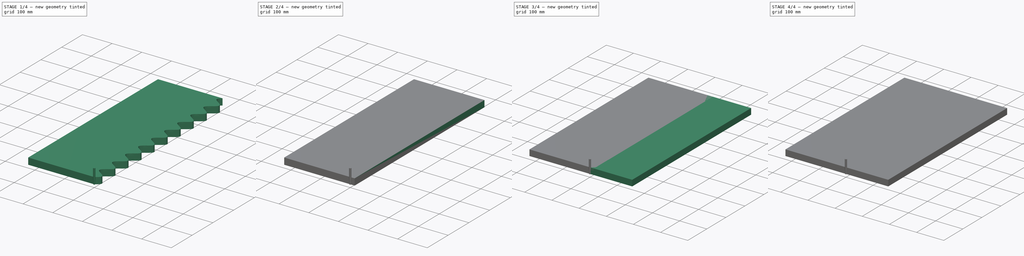
[diagram: build sequence overview — one tinted view per stage of 4, left to right]
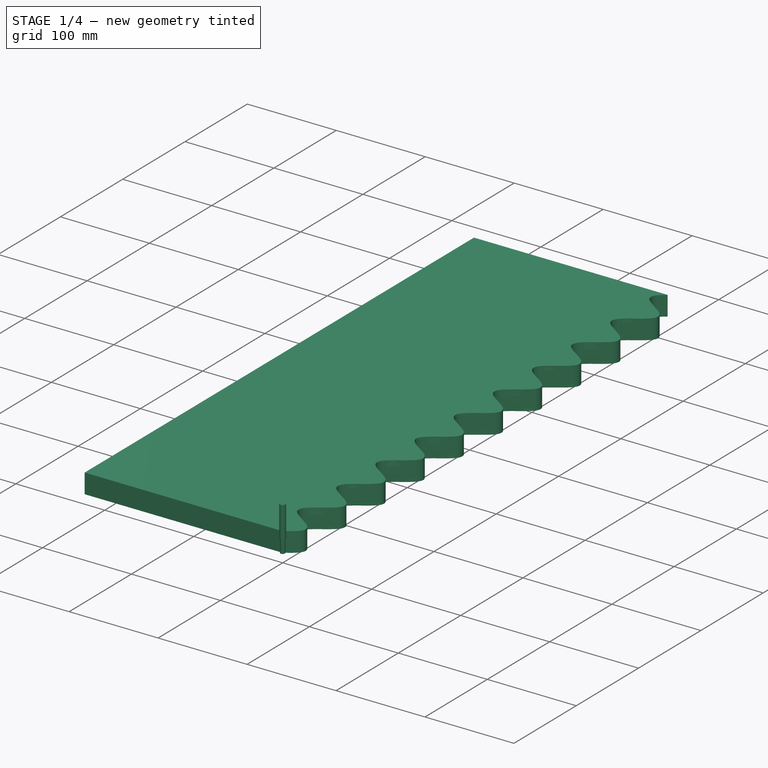
[diagram: stage 1 of 4 — iso view after this stage's code; geometry added in this stage tinted green]
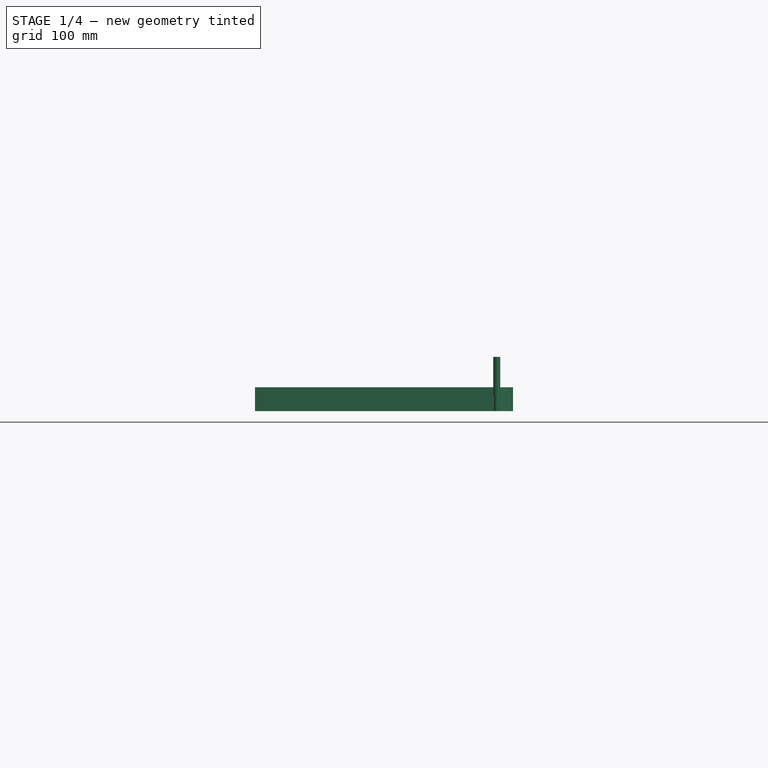
[diagram: stage 1 of 4 — front view after this stage's code; geometry added in this stage tinted green]
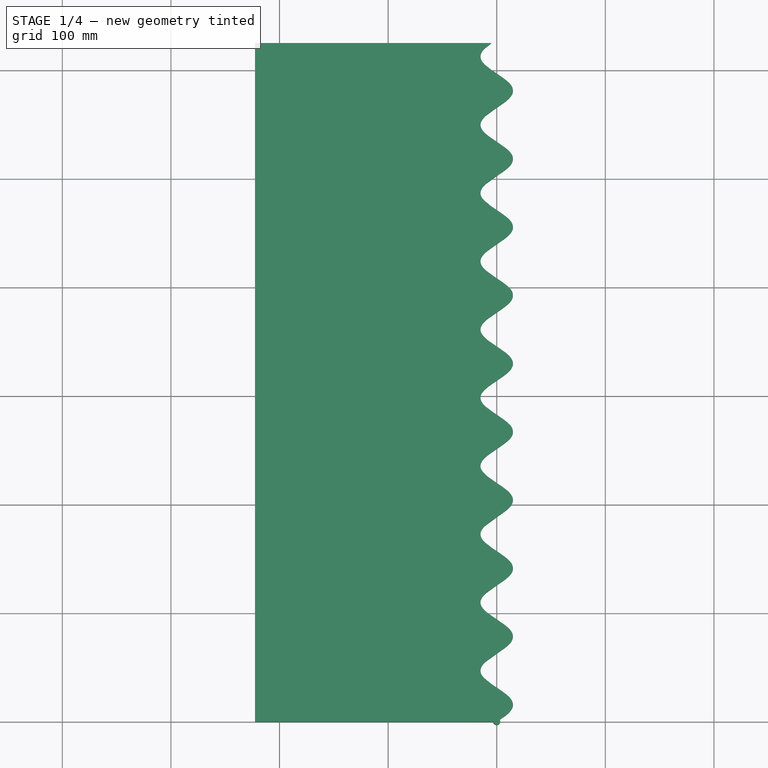
[diagram: stage 1 of 4 — top view after this stage's code; geometry added in this stage tinted green]
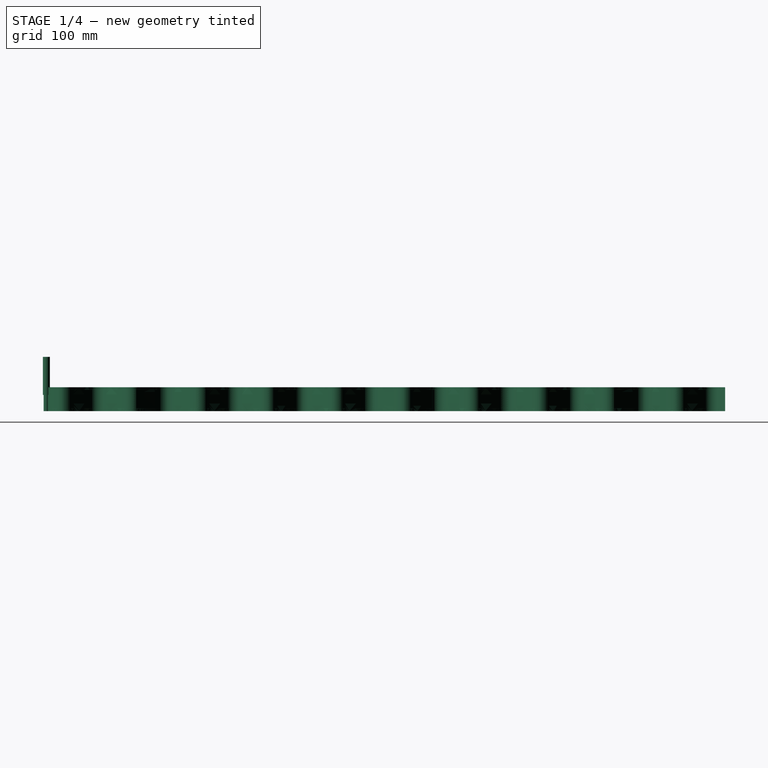
[diagram: stage 1 of 4 — right view after this stage's code; geometry added in this stage tinted green]
FCSTD DOCUMENT  (FreeCAD 0.20RUnknown)
Label: Spline
License: All rights reserved
LicenseURL: http://en.wikipedia.org/wiki/All_rights_reserved
objects: Part::FeaturePython×7, App::DocumentObjectGroup×6, Path::FeaturePython×6, Sketcher::SketchObject×2, PartDesign::Pad×2, PartDesign::Body×2, App::FeaturePython×2, Part::Part2DObjectPython×1
note: 18 computed .brp shape members not serialized (recipe doc carries the construction recipe); baked Part::Feature solids carry a one-line shape summary decoded from their .brp

FEATURE [Path::FeaturePython] _mm_Endmill  label="5mm Endmill001"  # Path/CAM operation (typed FeaturePython)
  HorizFeed = 15
  HorizRapid = 0
  SpindleDir = 0
  SpindleSpeed = 12000
  Tool = -> ToolBit002
  ToolNumber = 2
  VertFeed = 5
  VertRapid = 0
  expr: HorizRapid = SetupSheet.HorizRapid
  expr: VertRapid = SetupSheet.VertRapid
FEATURE [App::DocumentObjectGroup] Tools
  Group = -> [_mm_Endmill]
FEATURE [Path::FeaturePython] Profile  # Path/CAM operation (typed FeaturePython)
  Active = true
  Base = -> [Clone]
  ClearanceHeight = 27
  CoolantMode = 0
  CycleTime = 00:10:15
  Direction = 0
  FinalDepth = 0
  HandleMultipleFeatures = 0
  JoinType = 0
  MiterLimit = 0.1
  OffsetExtra = 0
  OpFinalDepth = 22
  OpStartDepth = 26
  OpStockZMax = 22
  OpStockZMin = 0
  OpToolDiameter = 5
  PathParams = {'feedrate': 15.0, 'feedrate_v': 5.0, 'verbose': True, 'resume_height': 25.0, 'retraction': 27.0, 'return_end': True, 'preamble': False, 'start': Vector (-1.5178215833962319, 1.9834919609406825, 0.0)}
  SafeHeight = 25
  Side = 0
  SplitArcs = false
  StartDepth = 22
  StartPoint = (0,0,0)
  StepDown = 4
  ToolController = -> _mm_Endmill
  UseComp = true
  UseStartPoint = false
  processCircles = false
  processHoles = false
  processPerimeter = true
  expr: ClearanceHeight = OpStockZMax + SetupSheet.ClearanceHeightOffset
  expr: FinalDepth = 0
  expr: SafeHeight = OpStockZMax + SetupSheet.SafeHeightOffset
  expr: StartDepth = 22
  expr: StepDown = 4
FEATURE [App::DocumentObjectGroup] Operations
  Group = -> [Profile]
FEATURE [Path::FeaturePython] Job  label="RightJob"  # Path/CAM operation (typed FeaturePython)
  CycleTime = 00:10:15
  Fixtures = G54
  GeometryTolerance = 0.01
  JobType = 0
  Model = -> Model
  Operations = -> Operations
  OrderOutputBy = 0
  PostProcessor = 2
  PostProcessorOutputFile = %D/%d-%j.ngc
  SetupSheet = -> SetupSheet
  SplitOutput = false
  Stock = -> Stock001
  Tools = -> Tools
FEATURE [Sketcher::SketchObject] Sketch001
  FullyConstrained = false
  sketch-geometry (258):
    g0: BSplineCurve PolesCount=128 KnotsCount=126 Degree=3 IsPeriodic=0
    g1-g128: Circle x128 (B-spline internal-alignment scaffolding for g0; pole/knot coordinates omitted)
    g129-g254: GeomPoint x126 (B-spline internal-alignment scaffolding for g0; pole/knot coordinates omitted)
    g255: LineSegment StartX=-4.88693 StartY=625 StartZ=0 EndX=-222.593 EndY=625 EndZ=0
    g256: LineSegment StartX=-222.593 StartY=625 StartZ=0 EndX=-222.593 EndY=0 EndZ=0
    g257: LineSegment StartX=-222.593 StartY=0 StartZ=0 EndX=0 EndY=0 EndZ=0
  constraints (9):
    c: InternalAlignment(g1-g254 -> g0) x254
    c: Coincident(g255,g256)
    c: Coincident(g256,g257)
    c: PointOnObject(g257,g-2)
    c: PointOnObject(g257,g-1)
    c: PointOnObject(g256,g-1)
    c: Perpendicular(g-1,g256)
    c: Parallel(g255,g257)
    c: Coincident(g255,g0)
FEATURE [PartDesign::Pad] Pad001
  Direction = (0,0,1)
  Length = 22
  Length2 = 10
  Profile = -> Sketch001
  ReferenceAxis = -> Sketch001 [N_Axis]
  Type = 0
FEATURE [Part::FeaturePython] ToolBit004  label="5mm Endmill002"  # Path/CAM toolbit (typed FeaturePython)
  BitPropertyNames = Chipload | CuttingEdgeHeight | Diameter | Flutes | Length | Material | ShankDiameter | SpindleDirection
  BitShape = <path>
  Chipload = 0
  CuttingEdgeHeight = 15
  Diameter = 5
  File = <userpath>/Documents/Sherline/FreeCAD/Bit/5mm_Endmill.fctb
  Flutes = 0
  Length = 50
  Material = 0
  ShankDiameter = 6.4
  ShapeName = endmill
  SpindleDirection = 0
FEATURE [Path::FeaturePython] _mm_Endmill002  label="5mm Endmill003"  # Path/CAM operation (typed FeaturePython)
  HorizFeed = 15
  HorizRapid = 0
  SpindleDir = 0
  SpindleSpeed = 12000
  Tool = -> ToolBit004
  ToolNumber = 2
  VertFeed = 5
  VertRapid = 0
  expr: HorizRapid = SetupSheet001.HorizRapid
  expr: VertRapid = SetupSheet001.VertRapid
FEATURE [App::DocumentObjectGroup] Tools001
  Group = -> [_mm_Endmill002]
FEATURE [Path::FeaturePython] Profile001  # Path/CAM operation (typed FeaturePython)
  Active = true
  Base = -> [Clone001]
  ClearanceHeight = 27
  CoolantMode = 0
  CycleTime = 00:10:57
  Direction = 0
  FinalDepth = 0
  HandleMultipleFeatures = 0
  JoinType = 0
  MiterLimit = 0.1
  OffsetExtra = 0
  OpFinalDepth = 22
  OpStartDepth = 26
  OpStockZMax = 22
  OpStockZMin = 0
  OpToolDiameter = 5
  PathParams = {'feedrate': 15.0, 'feedrate_v': 5.0, 'verbose': True, 'resume_height': 25.0, 'retraction': 27.0, 'return_end': True, 'preamble': False, 'start': Vector (-3.349763455213378, 623.030587, 0.0)}
  SafeHeight = 25
  Side = 0
  SplitArcs = false
  StartDepth = 22
  StartPoint = (0,0,0)
  StepDown = 4
  ToolController = -> _mm_Endmill002
  UseComp = true
  UseStartPoint = false
  processCircles = false
  processHoles = false
  processPerimeter = true
  expr: ClearanceHeight = 27
  expr: FinalDepth = 0
  expr: SafeHeight = 25
  expr: StartDepth = 22
  expr: StepDown = 4
FEATURE [App::DocumentObjectGroup] Operations001
  Group = -> [Profile001]
FEATURE [Path::FeaturePython] Job001  label="LeftJob"  # Path/CAM operation (typed FeaturePython)
  CycleTime = 00:10:57
  Fixtures = G54
  GeometryTolerance = 0.01
  JobType = 0
  Model = -> Model001
  Operations = -> Operations001
  OrderOutputBy = 0
  PostProcessor = 2
  PostProcessorOutputFile = %D/%d-%j.ngc
  SetupSheet = -> SetupSheet001
  SplitOutput = false
  Stock = -> Stock002
  Tools = -> Tools001
note: 3 file-system paths scrubbed to <path> (originals preserved in the JSON sidecar)
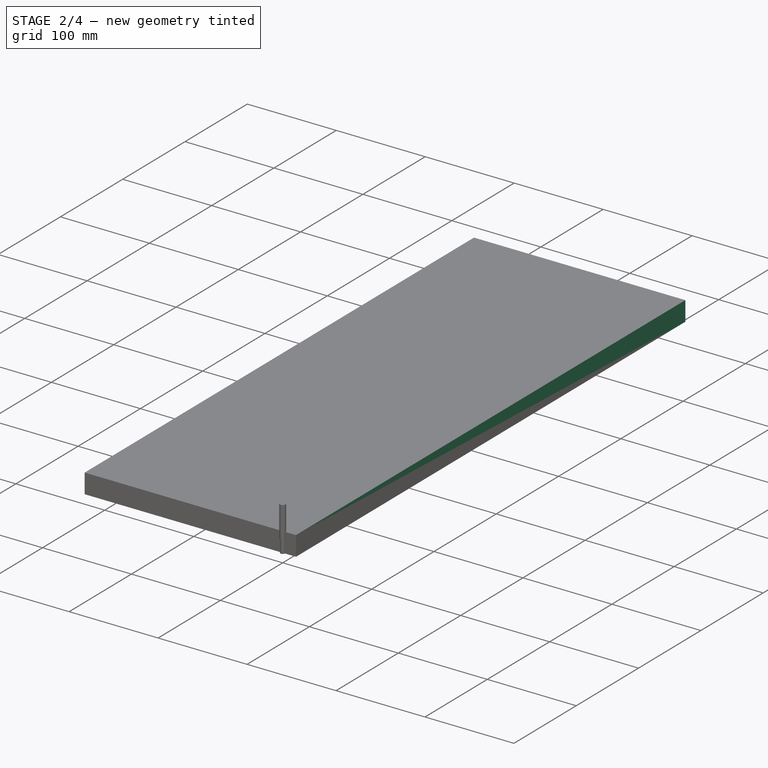
[diagram: stage 2 of 4 — iso view after this stage's code; geometry added in this stage tinted green]
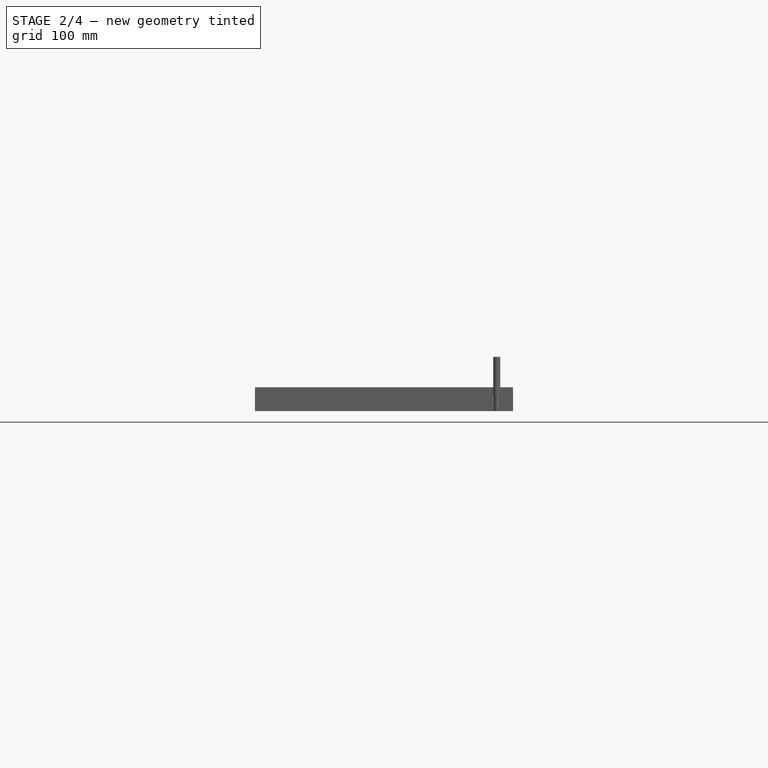
[diagram: stage 2 of 4 — front view after this stage's code; geometry added in this stage tinted green]
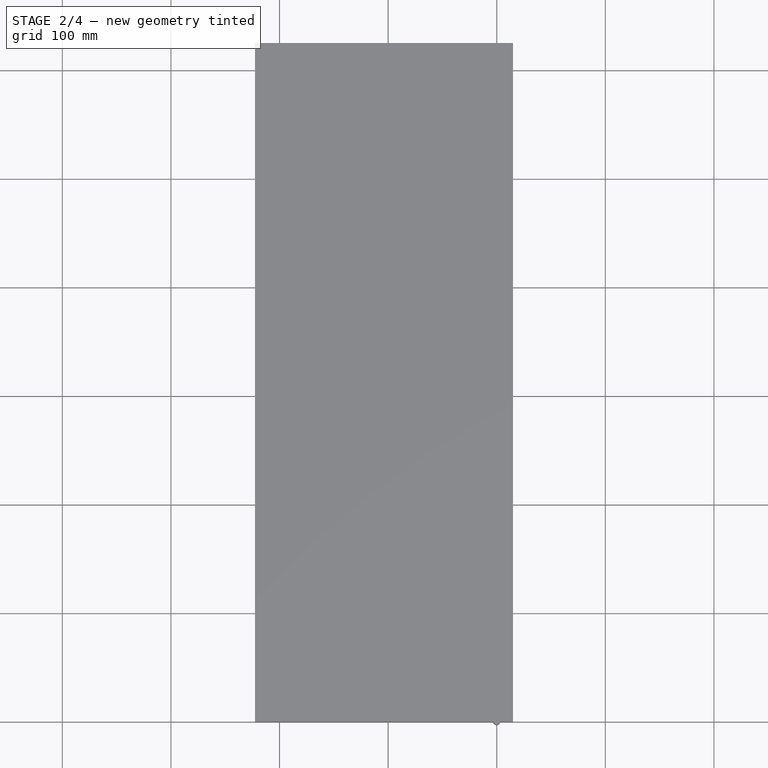
[diagram: stage 2 of 4 — top view after this stage's code; geometry added in this stage tinted green]
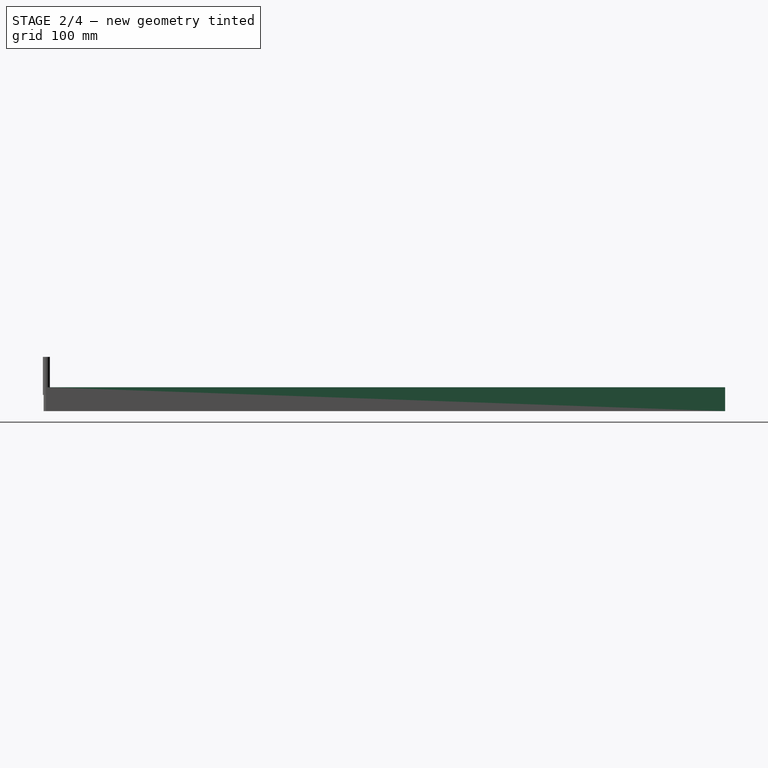
[diagram: stage 2 of 4 — right view after this stage's code; geometry added in this stage tinted green]
FEATURE [PartDesign::Body] Body001  label="LeftBody"
  Group = -> [Sketch001,Pad001]
  Origin = -> Origin001
  Tip = -> Pad001
FEATURE [App::FeaturePython] SetupSheet001  # Path/CAM operation (typed FeaturePython)
  ClearanceHeightExpression = OpStockZMax+SetupSheet001.ClearanceHeightOffset
  ClearanceHeightOffset = 5
  CoolantMode = 0
  CoolantModes = None | Flood | Mist
  FinalDepthExpression = OpFinalDepth
  HorizRapid = 0
  SafeHeightExpression = OpStockZMax+SetupSheet001.SafeHeightOffset
  SafeHeightOffset = 3
  StartDepthExpression = OpStartDepth
  StepDownExpression = OpToolDiameter
  VertRapid = 0
FEATURE [Part::FeaturePython] Clone001  label="Model-LeftBody"  # Draft clone (typed FeaturePython)
  AttacherType = Attacher::AttachEngine3D
  Fuse = false
  Objects = -> [Body001]
  PathResource = Model
  Scale = (1,1,1)
FEATURE [App::DocumentObjectGroup] Model001
  Group = -> [Clone001]
FEATURE [Part::FeaturePython] Stock002  # WARN: FeaturePython — macro-defined, semantics opaque (R4)
  Height = 22
  Length = 237.59
  Placement = pos=(-222.593,0,0) rot=(0,0,1;0rad)
  StockType = CreateBox
  Width = 625
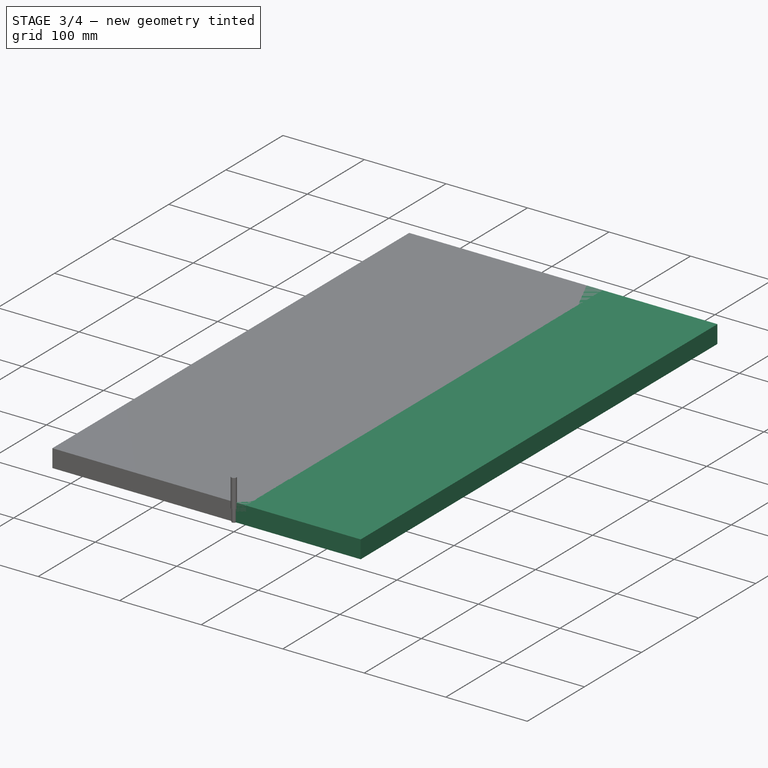
[diagram: stage 3 of 4 — iso view after this stage's code; geometry added in this stage tinted green]
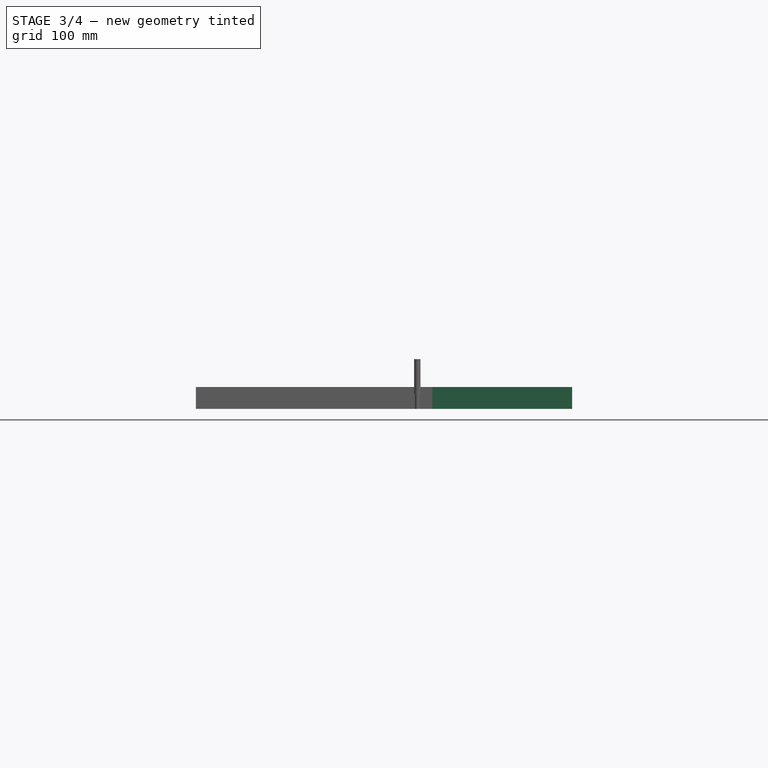
[diagram: stage 3 of 4 — front view after this stage's code; geometry added in this stage tinted green]
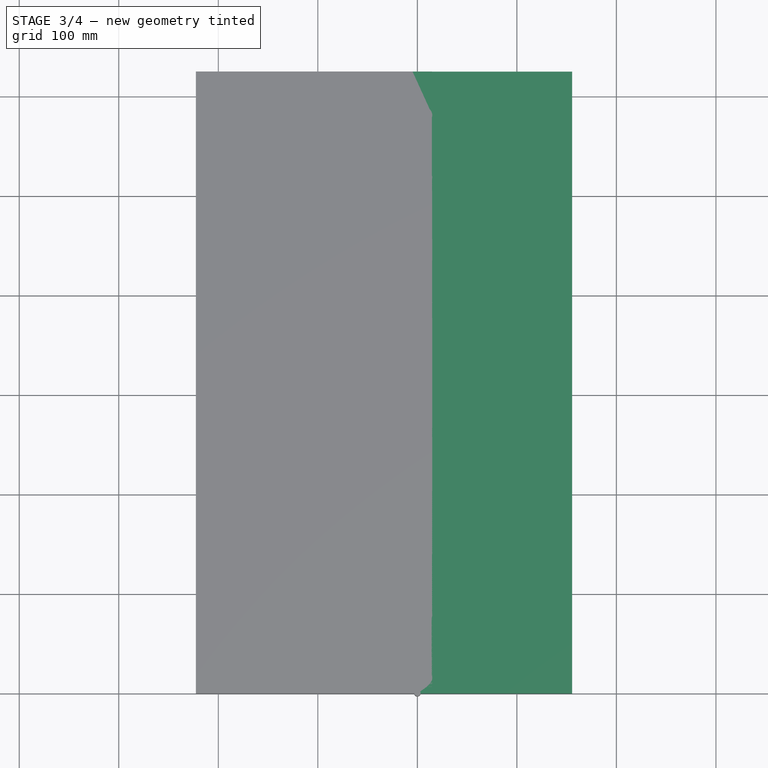
[diagram: stage 3 of 4 — top view after this stage's code; geometry added in this stage tinted green]
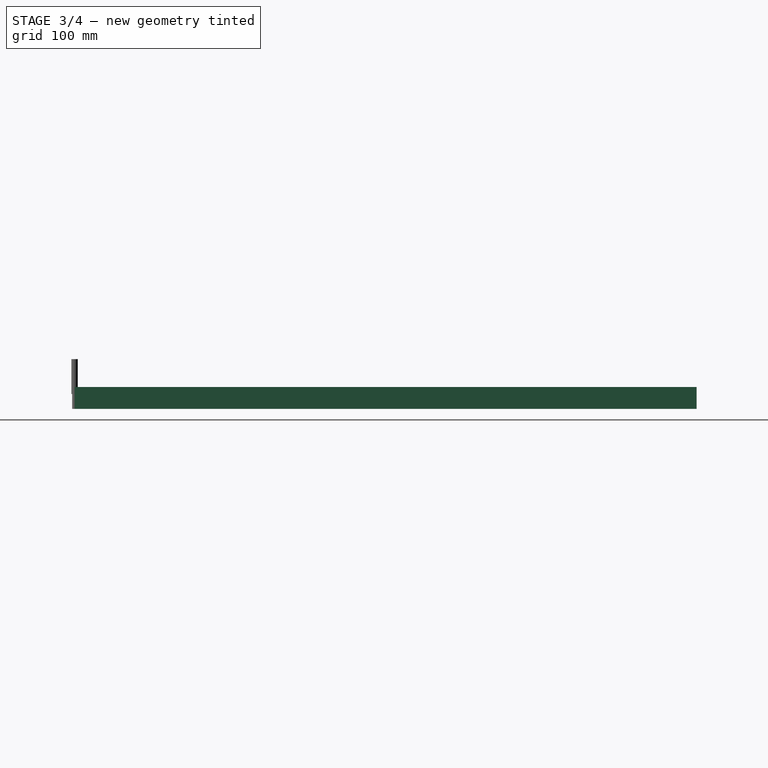
[diagram: stage 3 of 4 — right view after this stage's code; geometry added in this stage tinted green]
FEATURE [Part::Part2DObjectPython] BSpline001  # Draft 2D object (typed FeaturePython)
  Area = 0
  Closed = false
  MakeFace = true
  Parameterization = 1
  Points = (126) [(0,0,0),(7.19138,5,0),(12.6221,10,0),(14.9624,15,0),(13.6395,20,0),(8.97708,25,0),(2.1168,30,0),(-5.26175,35,0),(-11.352,40,0),(-14.663,45,0),+116 more]
FEATURE [Sketcher::SketchObject] Sketch
  FullyConstrained = false
  sketch-geometry (258):
    g0: BSplineCurve PolesCount=128 KnotsCount=126 Degree=3 IsPeriodic=0
    g1-g128: Circle x128 (B-spline internal-alignment scaffolding for g0; pole/knot coordinates omitted)
    g129-g254: GeomPoint x126 (B-spline internal-alignment scaffolding for g0; pole/knot coordinates omitted)
    g255: LineSegment StartX=-4.80095 StartY=624.929 StartZ=0 EndX=155.563 EndY=624.929 EndZ=0
    g256: LineSegment StartX=155.563 StartY=624.929 StartZ=0 EndX=155.563 EndY=0 EndZ=0
    g257: LineSegment StartX=155.563 StartY=0 StartZ=0 EndX=0 EndY=0 EndZ=0
  constraints (7):
    c: InternalAlignment(g1-g254 -> g0) x254
    c: Coincident(g255,g256)
    c: Coincident(g256,g257)
    c: Perpendicular(g-1,g256)
    c: PointOnObject(g256,g-1)
    c: Parallel(g255,g-1)
    c: Coincident(g0,g255)
FEATURE [PartDesign::Pad] Pad
  Direction = (0,0,1)
  Length = 22
  Length2 = 10
  Profile = -> Sketch
  ReferenceAxis = -> Sketch [N_Axis]
  Type = 0
FEATURE [PartDesign::Body] Body  label="RightBody"
  Group = -> [Sketch,Pad]
  Origin = -> Origin
  Tip = -> Pad
FEATURE [App::FeaturePython] SetupSheet  # Path/CAM operation (typed FeaturePython)
  ClearanceHeightExpression = OpStockZMax+SetupSheet.ClearanceHeightOffset
  ClearanceHeightOffset = 5
  CoolantMode = 0
  CoolantModes = None | Flood | Mist
  FinalDepthExpression = OpFinalDepth
  HorizRapid = 0
  SafeHeightExpression = OpStockZMax+SetupSheet.SafeHeightOffset
  SafeHeightOffset = 3
  StartDepthExpression = OpStartDepth
  StepDownExpression = OpToolDiameter
  VertRapid = 0
FEATURE [Part::FeaturePython] Clone  label="Model-Body"  # Draft clone (typed FeaturePython)
  AttacherType = Attacher::AttachEngine3D
  Fuse = false
  Objects = -> [Body]
  PathResource = Model
  Scale = (1,1,1)
FEATURE [Part::FeaturePython] ToolBit002  label="5mm Endmill"  # Path/CAM toolbit (typed FeaturePython)
  BitPropertyNames = Chipload | CuttingEdgeHeight | Diameter | Flutes | Length | Material | ShankDiameter | SpindleDirection
  BitShape = <path>
  Chipload = 0
  CuttingEdgeHeight = 15
  Diameter = 5
  File = <userpath>/Documents/Sherline/FreeCAD/Bit/5mm_Endmill.fctb
  Flutes = 0
  Length = 50
  Material = 0
  ShankDiameter = 6.4
  ShapeName = endmill
  SpindleDirection = 0
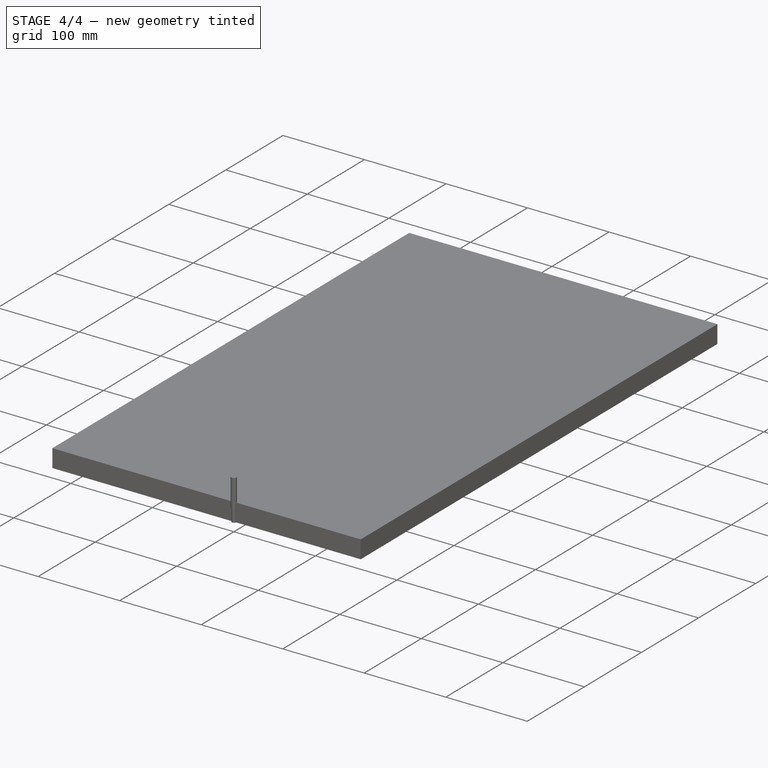
[diagram: stage 4 of 4 — iso view after this stage's code; geometry added in this stage tinted green]
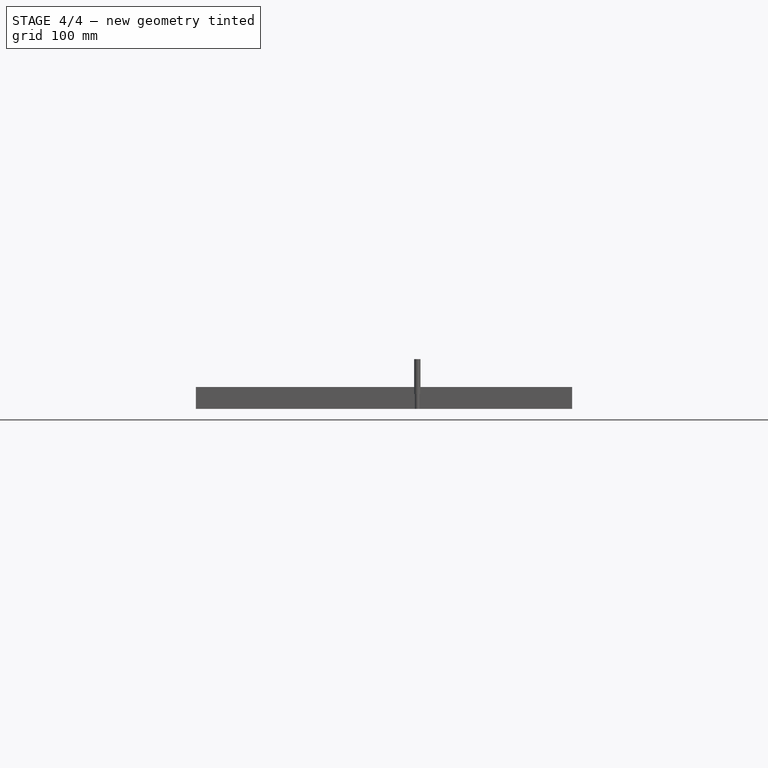
[diagram: stage 4 of 4 — front view after this stage's code; geometry added in this stage tinted green]
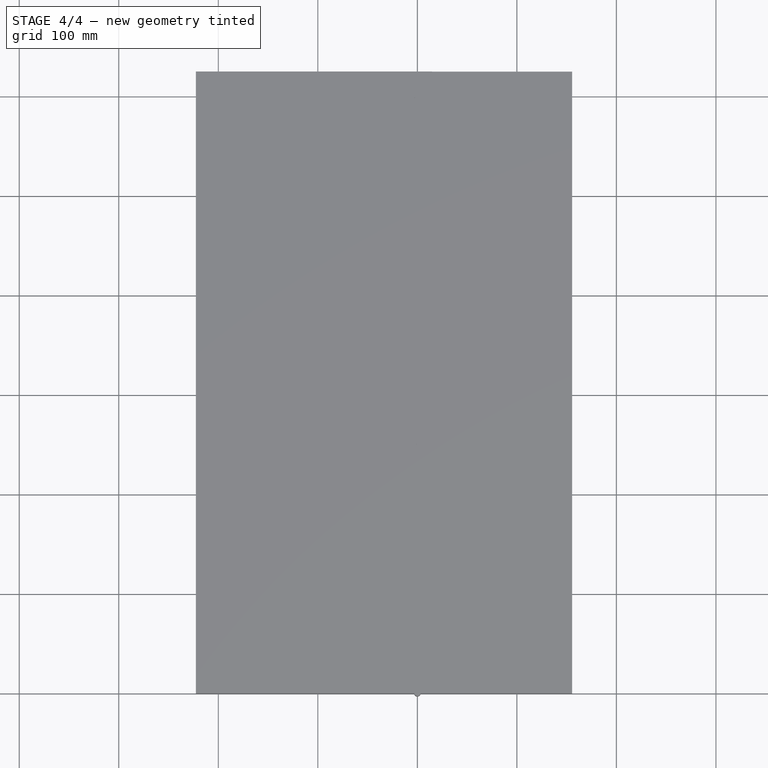
[diagram: stage 4 of 4 — top view after this stage's code; geometry added in this stage tinted green]
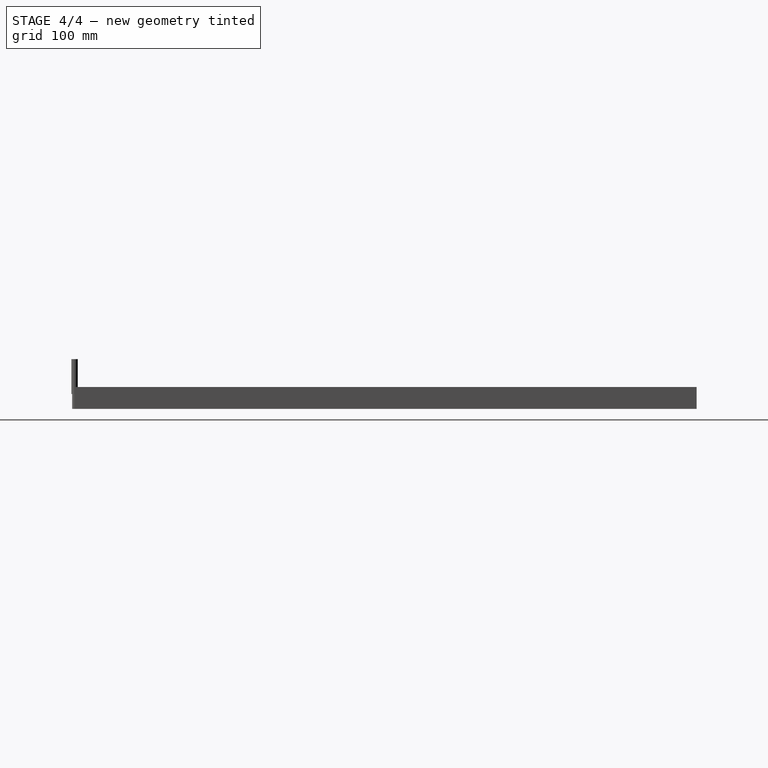
[diagram: stage 4 of 4 — right view after this stage's code; geometry added in this stage tinted green]
FEATURE [App::DocumentObjectGroup] Model
  Group = -> [Clone]
FEATURE [Part::FeaturePython] ToolBit  label="Endmill"  # Path/CAM toolbit (typed FeaturePython)
  BitPropertyNames = Chipload | CuttingEdgeHeight | Diameter | Flutes | Length | Material | ShankDiameter | SpindleDirection
  BitShape = <path>
  Chipload = 0
  CuttingEdgeHeight = 30
  Diameter = 5
  Flutes = 0
  Length = 50
  Material = 0
  ShankDiameter = 3
  ShapeName = endmill
  SpindleDirection = 0
FEATURE [Part::FeaturePython] Stock001  # WARN: FeaturePython — macro-defined, semantics opaque (R4)
  Height = 22
  Length = 170.56
  Placement = pos=(-14.994,0,0) rot=(0,0,1;0rad)
  StockType = CreateBox
  Width = 624.93
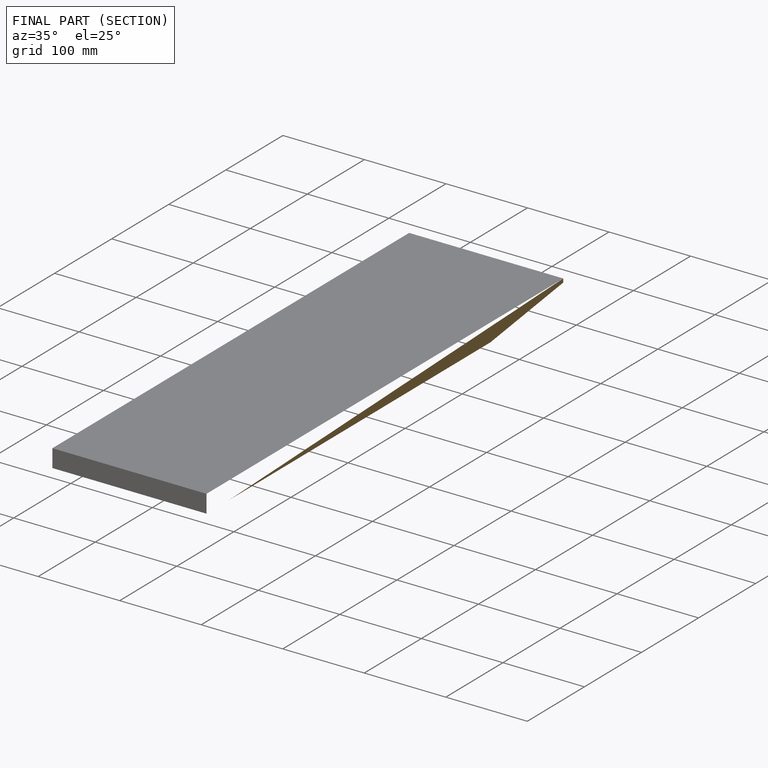
[diagram: finished part — half-section view (interior)]
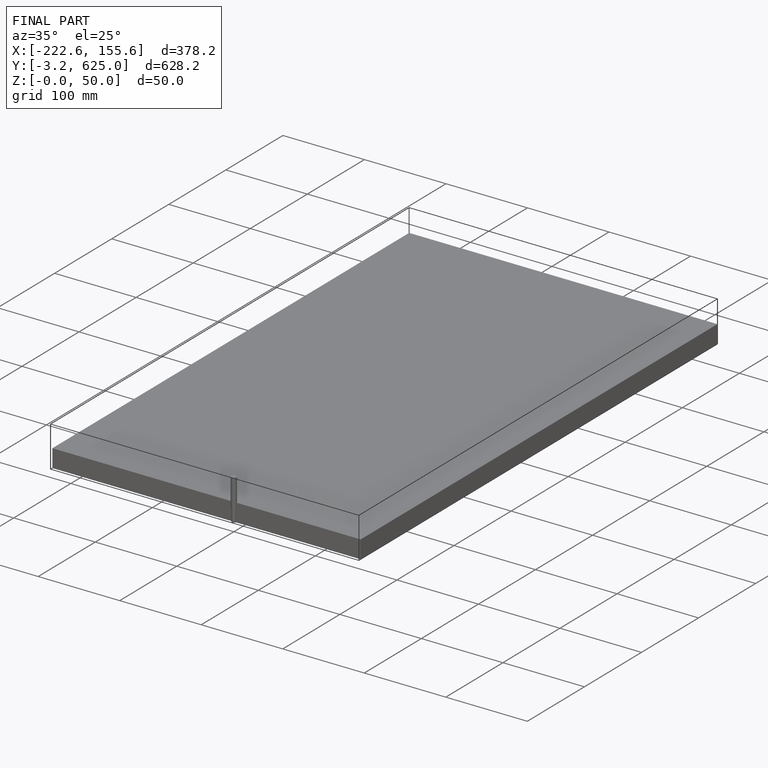
[diagram: finished part — iso view with bounding-box wireframe]
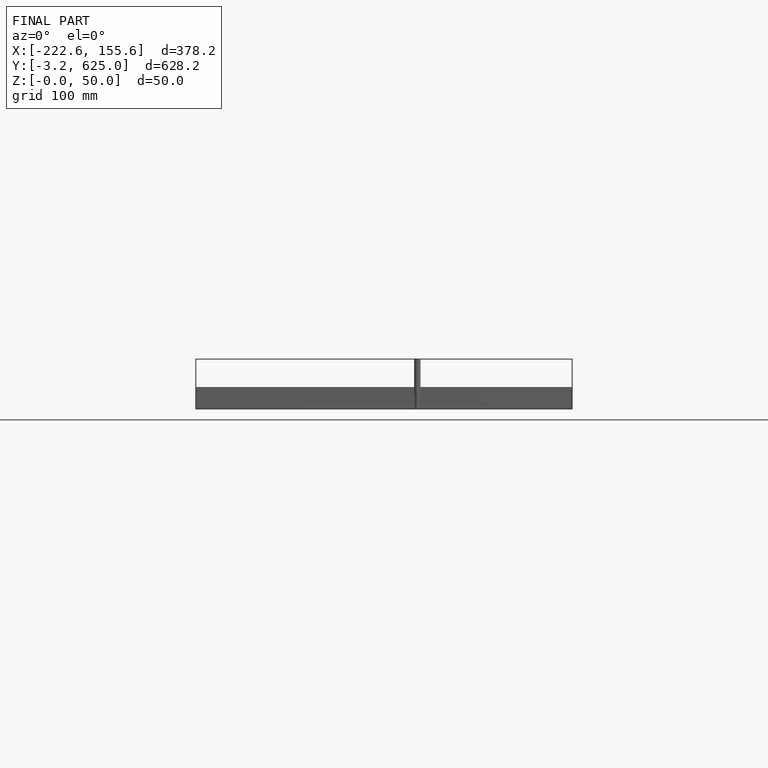
[diagram: finished part — front view with bounding-box wireframe]
